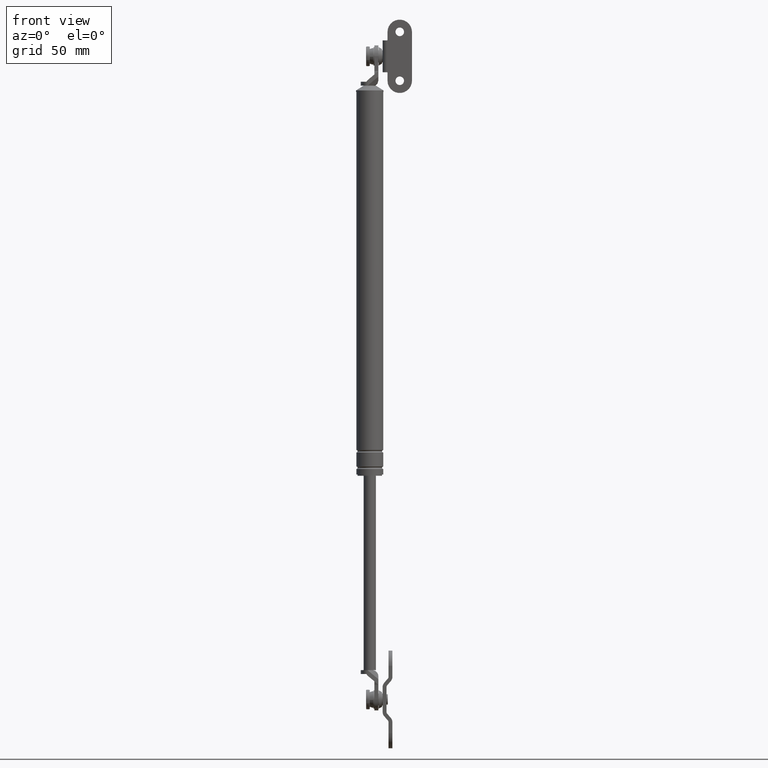
[diagram: clean part render]
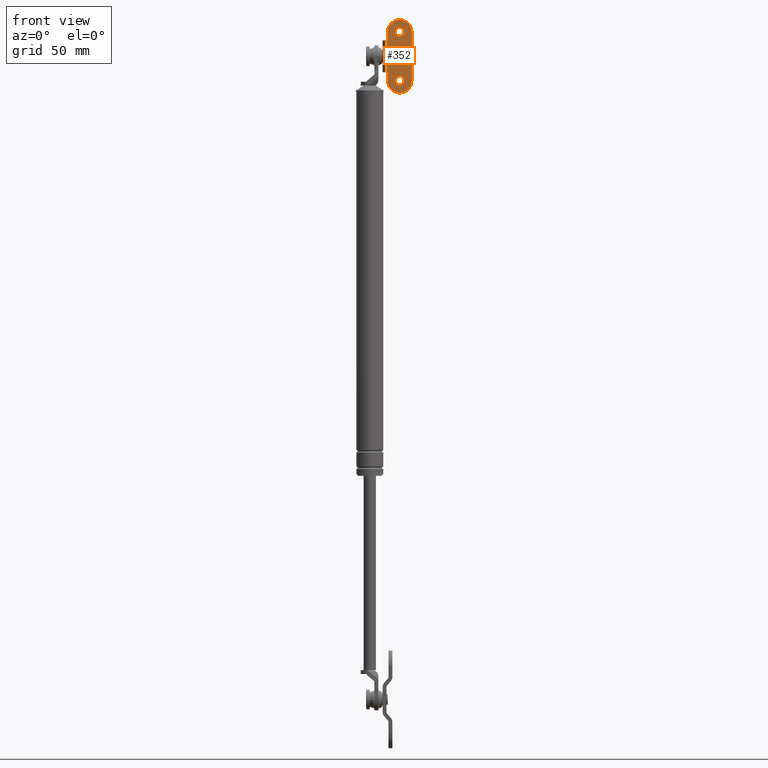
[diagram: same view with one face highlighted and labeled with its STEP entity id]
A machine part, front view. The second image highlights one B-rep face of the part: STEP entity #352.
In plain terms, the highlighted planar face has unit normal (0, -1, 0).
Its self-contained STEP definition (entity closure, byte-faithful):
#352=ADVANCED_FACE('',(#1203,#1204,#1205),#1202,.T.);
#1202=PLANE('',#2609);
#1203=FACE_OUTER_BOUND('',#2610,.T.);
#1204=FACE_BOUND('',#2611,.T.);
#1205=FACE_BOUND('',#2612,.T.);
#2606=CARTESIAN_POINT('',(6.63047447386E+001,-2.28800000000E+001,1.90587479342E+002));
#2607=DIRECTION('',(0.00000000000E+000,0.00000000000E+000,1.00000000000E+000));
#2608=DIRECTION('',(1.00000000000E+000,0.00000000000E+000,0.00000000000E+000));
#2609=AXIS2_PLACEMENT_3D('',#2606,#2607,#2608);
#2610=EDGE_LOOP('',(#3800,#3801,#3802,#3803,#3804,#3805,#3806,#3807,#3808,#3809));
#2611=EDGE_LOOP('',(#3810,#3811));
#2612=EDGE_LOOP('',(#3812,#3813));
#3800=ORIENTED_EDGE('',*,*,#4481,.F.);
#3801=ORIENTED_EDGE('',*,*,#4482,.T.);
#3802=ORIENTED_EDGE('',*,*,#4483,.F.);
#3803=ORIENTED_EDGE('',*,*,#4484,.T.);
#3804=ORIENTED_EDGE('',*,*,#4479,.F.);
#3805=ORIENTED_EDGE('',*,*,#4476,.F.);
#3806=ORIENTED_EDGE('',*,*,#4485,.F.);
#3807=ORIENTED_EDGE('',*,*,#4486,.F.);
#3808=ORIENTED_EDGE('',*,*,#4487,.F.);
#3809=ORIENTED_EDGE('',*,*,#4488,.T.);
#3810=ORIENTED_EDGE('',*,*,#4489,.T.);
#3811=ORIENTED_EDGE('',*,*,#4490,.T.);
#3812=ORIENTED_EDGE('',*,*,#4491,.T.);
#3813=ORIENTED_EDGE('',*,*,#4492,.T.);
#4476=EDGE_CURVE('',#5977,#5984,#5985,.T.);
#4479=EDGE_CURVE('',#5984,#6004,#6005,.T.);
#4481=EDGE_CURVE('',#6017,#6018,#6019,.T.);
#4482=EDGE_CURVE('',#6017,#6025,#6026,.T.);
#4483=EDGE_CURVE('',#6032,#6025,#6033,.T.);
#4484=EDGE_CURVE('',#6032,#6004,#6039,.T.);
#4485=EDGE_CURVE('',#6045,#5977,#6046,.T.);
#4486=EDGE_CURVE('',#6052,#6045,#6053,.T.);
#4487=EDGE_CURVE('',#6059,#6052,#6060,.T.);
#4488=EDGE_CURVE('',#6059,#6018,#6066,.T.);
#4489=EDGE_CURVE('',#6072,#6073,#6074,.T.);
#4490=EDGE_CURVE('',#6073,#6072,#6080,.T.);
#4491=EDGE_CURVE('',#6086,#6087,#6088,.T.);
#4492=EDGE_CURVE('',#6087,#6086,#6094,.T.);
#5977=VERTEX_POINT('',#8357);
#5984=VERTEX_POINT('',#8361);
#5985=CIRCLE('',#8365,1.00000000000E+001);
#6004=VERTEX_POINT('',#8373);
#6005=LINE('',#8374,#8375);
#6017=VERTEX_POINT('',#8380);
#6018=VERTEX_POINT('',#8381);
#6019=LINE('',#8382,#8383);
#6025=VERTEX_POINT('',#8385);
#6026=LINE('',#8386,#8387);
#6032=VERTEX_POINT('',#8389);
#6033=LINE('',#8390,#8391);
#6039=CIRCLE('',#8396,5.00000000000E-001);
#6045=VERTEX_POINT('',#8397);
#6046=LINE('',#8398,#8399);
#6052=VERTEX_POINT('',#8401);
#6053=CIRCLE('',#8405,1.00000000000E+001);
#6059=VERTEX_POINT('',#8406);
#6060=LINE('',#8407,#8408);
#6066=CIRCLE('',#8413,5.00000000000E-001);
#6072=VERTEX_POINT('',#8414);
#6073=VERTEX_POINT('',#8415);
#6074=CIRCLE('',#8419,3.50000000000E+000);
#6080=CIRCLE('',#8423,3.50000000000E+000);
#6086=VERTEX_POINT('',#8424);
#6087=VERTEX_POINT('',#8425);
#6088=CIRCLE('',#8429,3.50000000000E+000);
#6094=CIRCLE('',#8433,3.50000000000E+000);
#8357=CARTESIAN_POINT('',(8.23047447386E+001,-2.08000000000E+001,1.90587479342E+002));
#8361=CARTESIAN_POINT('',(8.23047447386E+001,-8.00000000000E-001,1.90587479342E+002));
#8362=CARTESIAN_POINT('',(8.23047447386E+001,-1.08000000000E+001,1.90587479342E+002));
#8363=DIRECTION('',(0.00000000000E+000,0.00000000000E+000,-1.00000000000E+000));
#8364=DIRECTION('',(1.83690953073E-016,1.00000000000E+000,0.00000000000E+000));
#8365=AXIS2_PLACEMENT_3D('',#8362,#8363,#8364);
#8373=CARTESIAN_POINT('',(8.88047447386E+001,-8.00000000000E-001,1.90587479342E+002));
#8374=CARTESIAN_POINT('',(8.23047447386E+001,-8.00000000000E-001,1.90587479342E+002));
#8375=VECTOR('',#8376,6.50000000000E+000);
#8376=DIRECTION('',(1.00000000000E+000,0.00000000000E+000,0.00000000000E+000));
#8380=CARTESIAN_POINT('',(1.15304744739E+002,-2.53269627493E-013,1.90587479342E+002));
#8381=CARTESIAN_POINT('',(1.15304744739E+002,-3.00000000000E-001,1.90587479342E+002));
#8382=CARTESIAN_POINT('',(1.15304744739E+002,-2.53269627493E-013,1.90587479342E+002));
#8383=VECTOR('',#8384,3.00000000000E-001);
#8384=DIRECTION('',(0.00000000000E+000,-1.00000000000E+000,0.00000000000E+000));
#8385=CARTESIAN_POINT('',(8.93047447386E+001,-2.53269627493E-013,1.90587479342E+002));
#8386=CARTESIAN_POINT('',(1.15304744739E+002,-2.53269627493E-013,1.90587479342E+002));
#8387=VECTOR('',#8388,2.60000000000E+001);
#8388=DIRECTION('',(-1.00000000000E+000,0.00000000000E+000,0.00000000000E+000));
#8389=CARTESIAN_POINT('',(8.93047447386E+001,-3.00000000000E-001,1.90587479342E+002));
#8390=CARTESIAN_POINT('',(8.93047447386E+001,-3.00000000000E-001,1.90587479342E+002));
#8391=VECTOR('',#8392,3.00000000000E-001);
#8392=DIRECTION('',(0.00000000000E+000,1.00000000000E+000,0.00000000000E+000));
#8393=CARTESIAN_POINT('',(8.88047447386E+001,-3.00000000000E-001,1.90587479342E+002));
#8394=DIRECTION('',(0.00000000000E+000,0.00000000000E+000,-1.00000000000E+000));
#8395=DIRECTION('',(-1.00000000000E+000,-0.00000000000E+000,-0.00000000000E+000));
#8396=AXIS2_PLACEMENT_3D('',#8393,#8394,#8395);
#8397=CARTESIAN_POINT('',(1.22304744739E+002,-2.08000000000E+001,1.90587479342E+002));
#8398=CARTESIAN_POINT('',(1.22304744739E+002,-2.08000000000E+001,1.90587479342E+002));
#8399=VECTOR('',#8400,4.00000000000E+001);
#8400=DIRECTION('',(-1.00000000000E+000,2.22044604925E-015,0.00000000000E+000));
#8401=CARTESIAN_POINT('',(1.22304744739E+002,-8.00000000000E-001,1.90587479342E+002));
#8402=CARTESIAN_POINT('',(1.22304744739E+002,-1.08000000000E+001,1.90587479342E+002));
#8403=DIRECTION('',(0.00000000000E+000,0.00000000000E+000,-1.00000000000E+000));
#8404=DIRECTION('',(-1.00000000000E+000,-0.00000000000E+000,-0.00000000000E+000));
#8405=AXIS2_PLACEMENT_3D('',#8402,#8403,#8404);
#8406=CARTESIAN_POINT('',(1.15804744739E+002,-8.00000000000E-001,1.90587479342E+002));
#8407=CARTESIAN_POINT('',(1.15804744739E+002,-8.00000000000E-001,1.90587479342E+002));
#8408=VECTOR('',#8409,6.50000000000E+000);
#8409=DIRECTION('',(1.00000000000E+000,0.00000000000E+000,0.00000000000E+000));
#8410=CARTESIAN_POINT('',(1.15804744739E+002,-3.00000000000E-001,1.90587479342E+002));
#8411=DIRECTION('',(0.00000000000E+000,0.00000000000E+000,-1.00000000000E+000));
#8412=DIRECTION('',(-1.00000000000E+000,-0.00000000000E+000,-0.00000000000E+000));
#8413=AXIS2_PLACEMENT_3D('',#8410,#8411,#8412);
#8414=CARTESIAN_POINT('',(8.58047447386E+001,-1.08000000000E+001,1.90587479342E+002));
#8415=CARTESIAN_POINT('',(7.88047447386E+001,-1.08000000000E+001,1.90587479342E+002));
#8416=CARTESIAN_POINT('',(8.23047447386E+001,-1.08000000000E+001,1.90587479342E+002));
#8417=DIRECTION('',(0.00000000000E+000,-0.00000000000E+000,-1.00000000000E+000));
#8418=DIRECTION('',(1.00000000000E+000,-1.22460635382E-016,0.00000000000E+000));
#8419=AXIS2_PLACEMENT_3D('',#8416,#8417,#8418);
#8420=CARTESIAN_POINT('',(8.23047447386E+001,-1.08000000000E+001,1.90587479342E+002));
#8421=DIRECTION('',(0.00000000000E+000,-0.00000000000E+000,-1.00000000000E+000));
#8422=DIRECTION('',(1.00000000000E+000,-1.22460635382E-016,0.00000000000E+000));
#8423=AXIS2_PLACEMENT_3D('',#8420,#8421,#8422);
#8424=CARTESIAN_POINT('',(1.25804744739E+002,-1.08000000000E+001,1.90587479342E+002));
#8425=CARTESIAN_POINT('',(1.18804744739E+002,-1.08000000000E+001,1.90587479342E+002));
#8426=CARTESIAN_POINT('',(1.22304744739E+002,-1.08000000000E+001,1.90587479342E+002));
#8427=DIRECTION('',(0.00000000000E+000,-0.00000000000E+000,-1.00000000000E+000));
#8428=DIRECTION('',(1.00000000000E+000,-1.22460635382E-016,0.00000000000E+000));
#8429=AXIS2_PLACEMENT_3D('',#8426,#8427,#8428);
#8430=CARTESIAN_POINT('',(1.22304744739E+002,-1.08000000000E+001,1.90587479342E+002));
#8431=DIRECTION('',(0.00000000000E+000,-0.00000000000E+000,-1.00000000000E+000));
#8432=DIRECTION('',(1.00000000000E+000,-1.22460635382E-016,0.00000000000E+000));
#8433=AXIS2_PLACEMENT_3D('',#8430,#8431,#8432);